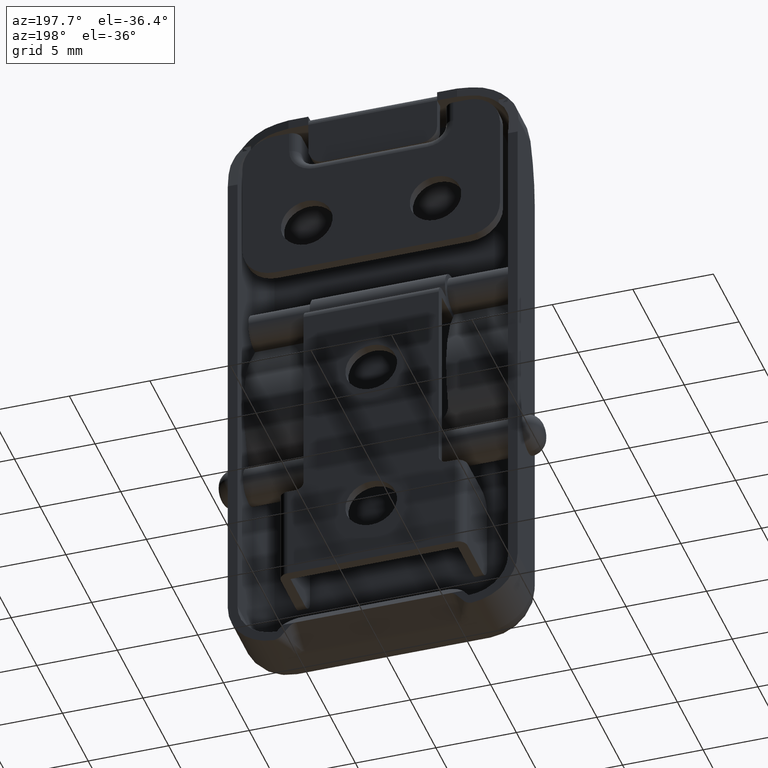
[diagram: clean part render]
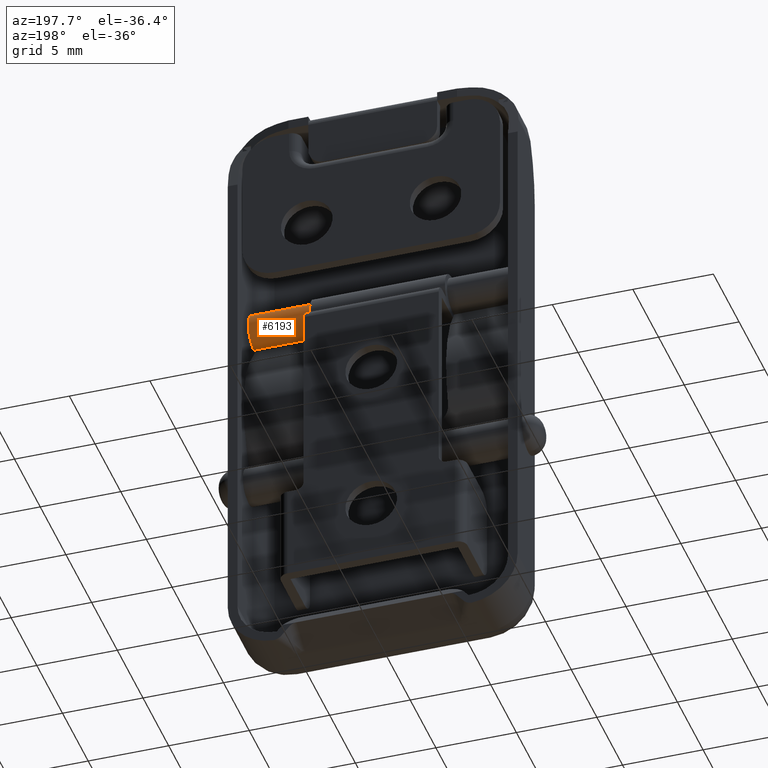
[diagram: same view with one face highlighted and labeled with its STEP entity id]
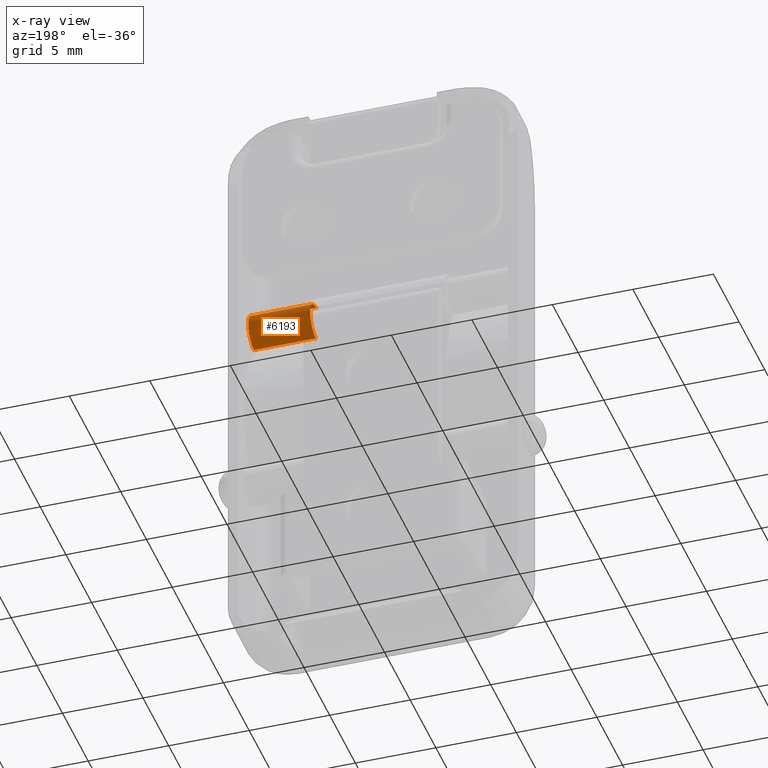
[diagram: x-ray of the same camera — body ghosted, the highlighted face saturated]
A machine part, auxiliary view. The second image highlights one B-rep face of the part: STEP entity #6193.
The next image is the same camera in x-ray: the body ghosted, the highlighted face saturated — about 0% of this face is hidden behind the body in this view.
In plain terms, the highlighted cylindrical surface (edge-blend (fillet) strip) has radius 1.15 mm, axis along (1, 0, 0).
Its self-contained STEP definition (entity closure, byte-faithful):
#18 = ORIENTED_EDGE ( 'NONE', *, *, #6171, .F. ) ;
#207 = VECTOR ( 'NONE', #946, 1000.000000000000000 ) ;
#428 = CYLINDRICAL_SURFACE ( 'NONE', #3232, 1.149999999999999700 ) ;
#526 = CARTESIAN_POINT ( 'NONE',  ( -991.6999990000000500, 0.04000002523504366000, -1.149304136415246300 ) ) ;
#680 = DIRECTION ( 'NONE',  ( -1.000000000000000000, 0.0000000000000000000, 0.0000000000000000000 ) ) ;
#798 = CARTESIAN_POINT ( 'NONE',  ( 8.100001000000000700, 0.04000002523504368100, -1.149304136415246800 ) ) ;
#946 = DIRECTION ( 'NONE',  ( 1.000000000000000000, 0.0000000000000000000, 0.0000000000000000000 ) ) ;
#1340 = EDGE_CURVE ( 'NONE', #5833, #3461, #1708, .T. ) ;
#1640 = EDGE_CURVE ( 'NONE', #3174, #3461, #4251, .T. ) ;
#1641 = CARTESIAN_POINT ( 'NONE',  ( 8.100001000000000700, -0.04000002523504353500, 1.149304136415246800 ) ) ;
#1708 = CIRCLE ( 'NONE', #2940, 1.149999999999999700 ) ;
#1904 = AXIS2_PLACEMENT_3D ( 'NONE', #3639, #680, #4125 ) ;
#2061 = CARTESIAN_POINT ( 'NONE',  ( 4.250001000000059600, -0.04000002523504353500, 1.149304136415246800 ) ) ;
#2133 = CARTESIAN_POINT ( 'NONE',  ( -991.6999990000000500, 0.0000000000000000000, 0.0000000000000000000 ) ) ;
#2142 = ORIENTED_EDGE ( 'NONE', *, *, #1340, .T. ) ;
#2657 = DIRECTION ( 'NONE',  ( 1.000000000000000000, 0.0000000000000000000, 0.0000000000000000000 ) ) ;
#2940 = AXIS2_PLACEMENT_3D ( 'NONE', #3635, #3702, #4887 ) ;
#3033 = FACE_OUTER_BOUND ( 'NONE', #4580, .T. ) ;
#3174 = VERTEX_POINT ( 'NONE', #5352 ) ;
#3232 = AXIS2_PLACEMENT_3D ( 'NONE', #2133, #2657, #6114 ) ;
#3276 = VERTEX_POINT ( 'NONE', #2061 ) ;
#3348 = CIRCLE ( 'NONE', #1904, 1.149999999999999700 ) ;
#3461 = VERTEX_POINT ( 'NONE', #798 ) ;
#3474 = DIRECTION ( 'NONE',  ( 1.000000000000000000, 0.0000000000000000000, 0.0000000000000000000 ) ) ;
#3635 = CARTESIAN_POINT ( 'NONE',  ( 8.100001000000000700, 0.0000000000000000000, 0.0000000000000000000 ) ) ;
#3639 = CARTESIAN_POINT ( 'NONE',  ( 4.250001000000059600, 0.0000000000000000000, 0.0000000000000000000 ) ) ;
#3702 = DIRECTION ( 'NONE',  ( -1.000000000000000000, -0.0000000000000000000, -0.0000000000000000000 ) ) ;
#4125 = DIRECTION ( 'NONE',  ( 0.0000000000000000000, -0.03478263063916840800, 0.9993949012306492200 ) ) ;
#4251 = LINE ( 'NONE', #526, #5393 ) ;
#4299 = LINE ( 'NONE', #4397, #207 ) ;
#4397 = CARTESIAN_POINT ( 'NONE',  ( -991.6999990000000500, -0.04000002523504351400, 1.149304136415246300 ) ) ;
#4580 = EDGE_LOOP ( 'NONE', ( #18, #5578, #2142, #5552 ) ) ;
#4881 = EDGE_CURVE ( 'NONE', #3276, #5833, #4299, .T. ) ;
#4887 = DIRECTION ( 'NONE',  ( 0.0000000000000000000, 0.03478263063916840800, -0.9993949012306492200 ) ) ;
#5352 = CARTESIAN_POINT ( 'NONE',  ( 4.250001000000059600, 0.04000002523504368100, -1.149304136415246800 ) ) ;
#5393 = VECTOR ( 'NONE', #3474, 1000.000000000000000 ) ;
#5552 = ORIENTED_EDGE ( 'NONE', *, *, #1640, .F. ) ;
#5578 = ORIENTED_EDGE ( 'NONE', *, *, #4881, .T. ) ;
#5833 = VERTEX_POINT ( 'NONE', #1641 ) ;
#6114 = DIRECTION ( 'NONE',  ( 0.0000000000000000000, 0.03478263063916840800, -0.9993949012306492200 ) ) ;
#6171 = EDGE_CURVE ( 'NONE', #3276, #3174, #3348, .T. ) ;
#6193 = ADVANCED_FACE ( 'NONE', ( #3033 ), #428, .T. ) ;